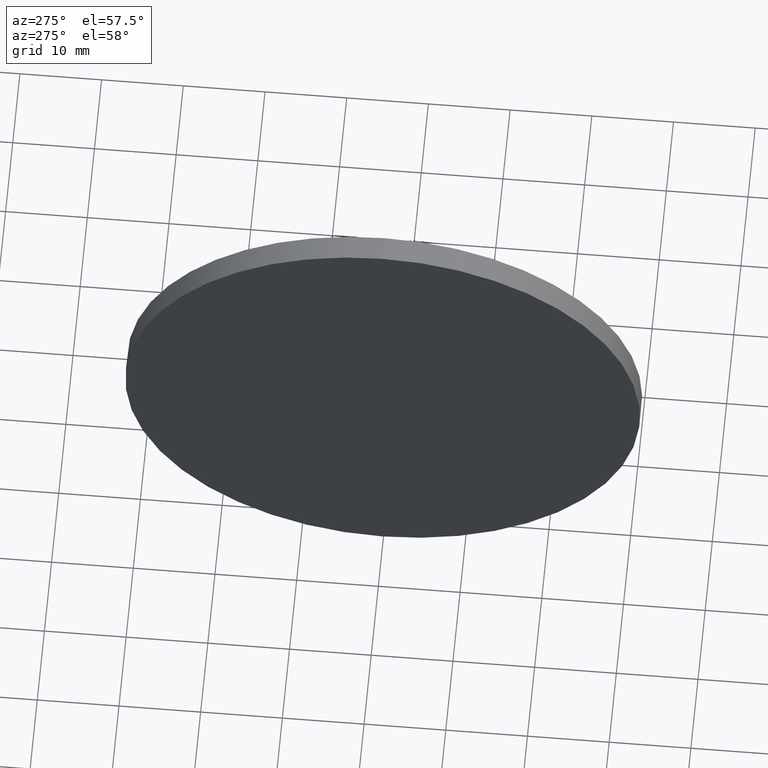
[diagram: clean part render]
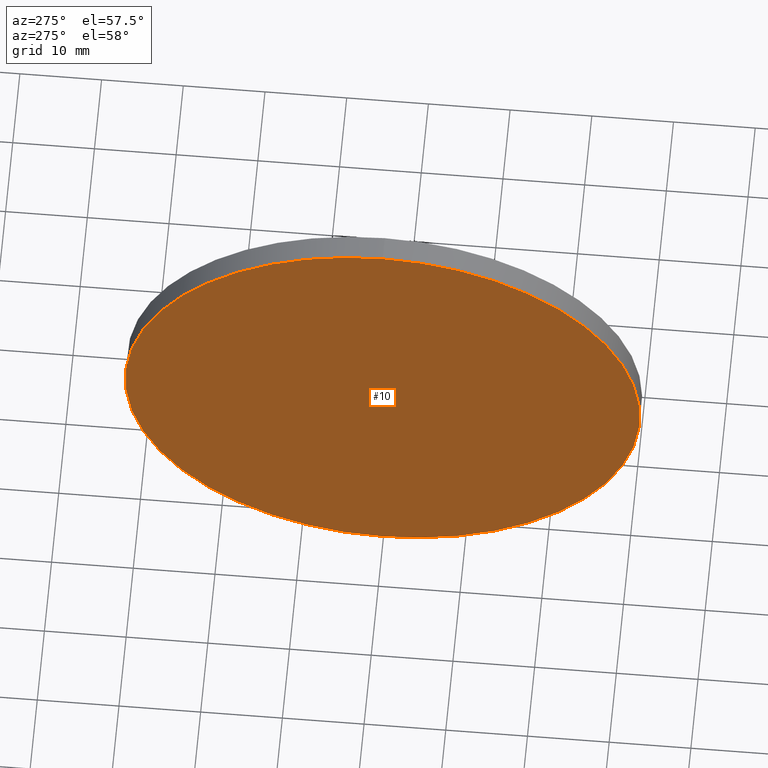
[diagram: same view with one face highlighted and labeled with its STEP entity id]
A machine part, auxiliary view. The second image highlights one B-rep face of the part: STEP entity #10.
In plain terms, the highlighted planar face has unit normal (1, 0, 0).
Its self-contained STEP definition (entity closure, byte-faithful):
#5 = CIRCLE ( 'NONE', #161, 31.50000000000000000 ) ;
#10 = ADVANCED_FACE ( 'NONE', ( #119 ), #22, .F. ) ;
#22 = PLANE ( 'NONE',  #132 ) ;
#23 = DIRECTION ( 'NONE',  ( 0.0000000000000000000, 0.0000000000000000000, -1.000000000000000000 ) ) ;
#27 = CARTESIAN_POINT ( 'NONE',  ( 236.3701037227096700, 130.0418907599245100, 0.0000000000000000000 ) ) ;
#30 = CIRCLE ( 'NONE', #64, 31.50000000000000000 ) ;
#39 = ORIENTED_EDGE ( 'NONE', *, *, #138, .T. ) ;
#64 = AXIS2_PLACEMENT_3D ( 'NONE', #27, #137, #153 ) ;
#68 = ORIENTED_EDGE ( 'NONE', *, *, #114, .T. ) ;
#73 = VERTEX_POINT ( 'NONE', #102 ) ;
#100 = DIRECTION ( 'NONE',  ( 1.000000000000000000, 0.0000000000000000000, 0.0000000000000000000 ) ) ;
#102 = CARTESIAN_POINT ( 'NONE',  ( 236.3701037227096700, 130.0418907599245100, -31.50000000000000000 ) ) ;
#114 = EDGE_CURVE ( 'NONE', #183, #73, #30, .T. ) ;
#118 = CARTESIAN_POINT ( 'NONE',  ( 236.3701037227096700, 130.0418907599245100, 0.0000000000000000000 ) ) ;
#119 = FACE_OUTER_BOUND ( 'NONE', #130, .T. ) ;
#130 = EDGE_LOOP ( 'NONE', ( #68, #39 ) ) ;
#132 = AXIS2_PLACEMENT_3D ( 'NONE', #118, #100, #23 ) ;
#137 = DIRECTION ( 'NONE',  ( -1.000000000000000000, -0.0000000000000000000, -0.0000000000000000000 ) ) ;
#138 = EDGE_CURVE ( 'NONE', #73, #183, #5, .T. ) ;
#141 = DIRECTION ( 'NONE',  ( -1.000000000000000000, -0.0000000000000000000, -0.0000000000000000000 ) ) ;
#153 = DIRECTION ( 'NONE',  ( 0.0000000000000000000, 0.0000000000000000000, 1.000000000000000000 ) ) ;
#154 = CARTESIAN_POINT ( 'NONE',  ( 236.3701037227096700, 130.0418907599245100, 0.0000000000000000000 ) ) ;
#161 = AXIS2_PLACEMENT_3D ( 'NONE', #154, #141, #169 ) ;
#169 = DIRECTION ( 'NONE',  ( 0.0000000000000000000, 0.0000000000000000000, 1.000000000000000000 ) ) ;
#181 = CARTESIAN_POINT ( 'NONE',  ( 236.3701037227096700, 130.0418907599245100, 31.50000000000000000 ) ) ;
#183 = VERTEX_POINT ( 'NONE', #181 ) ;